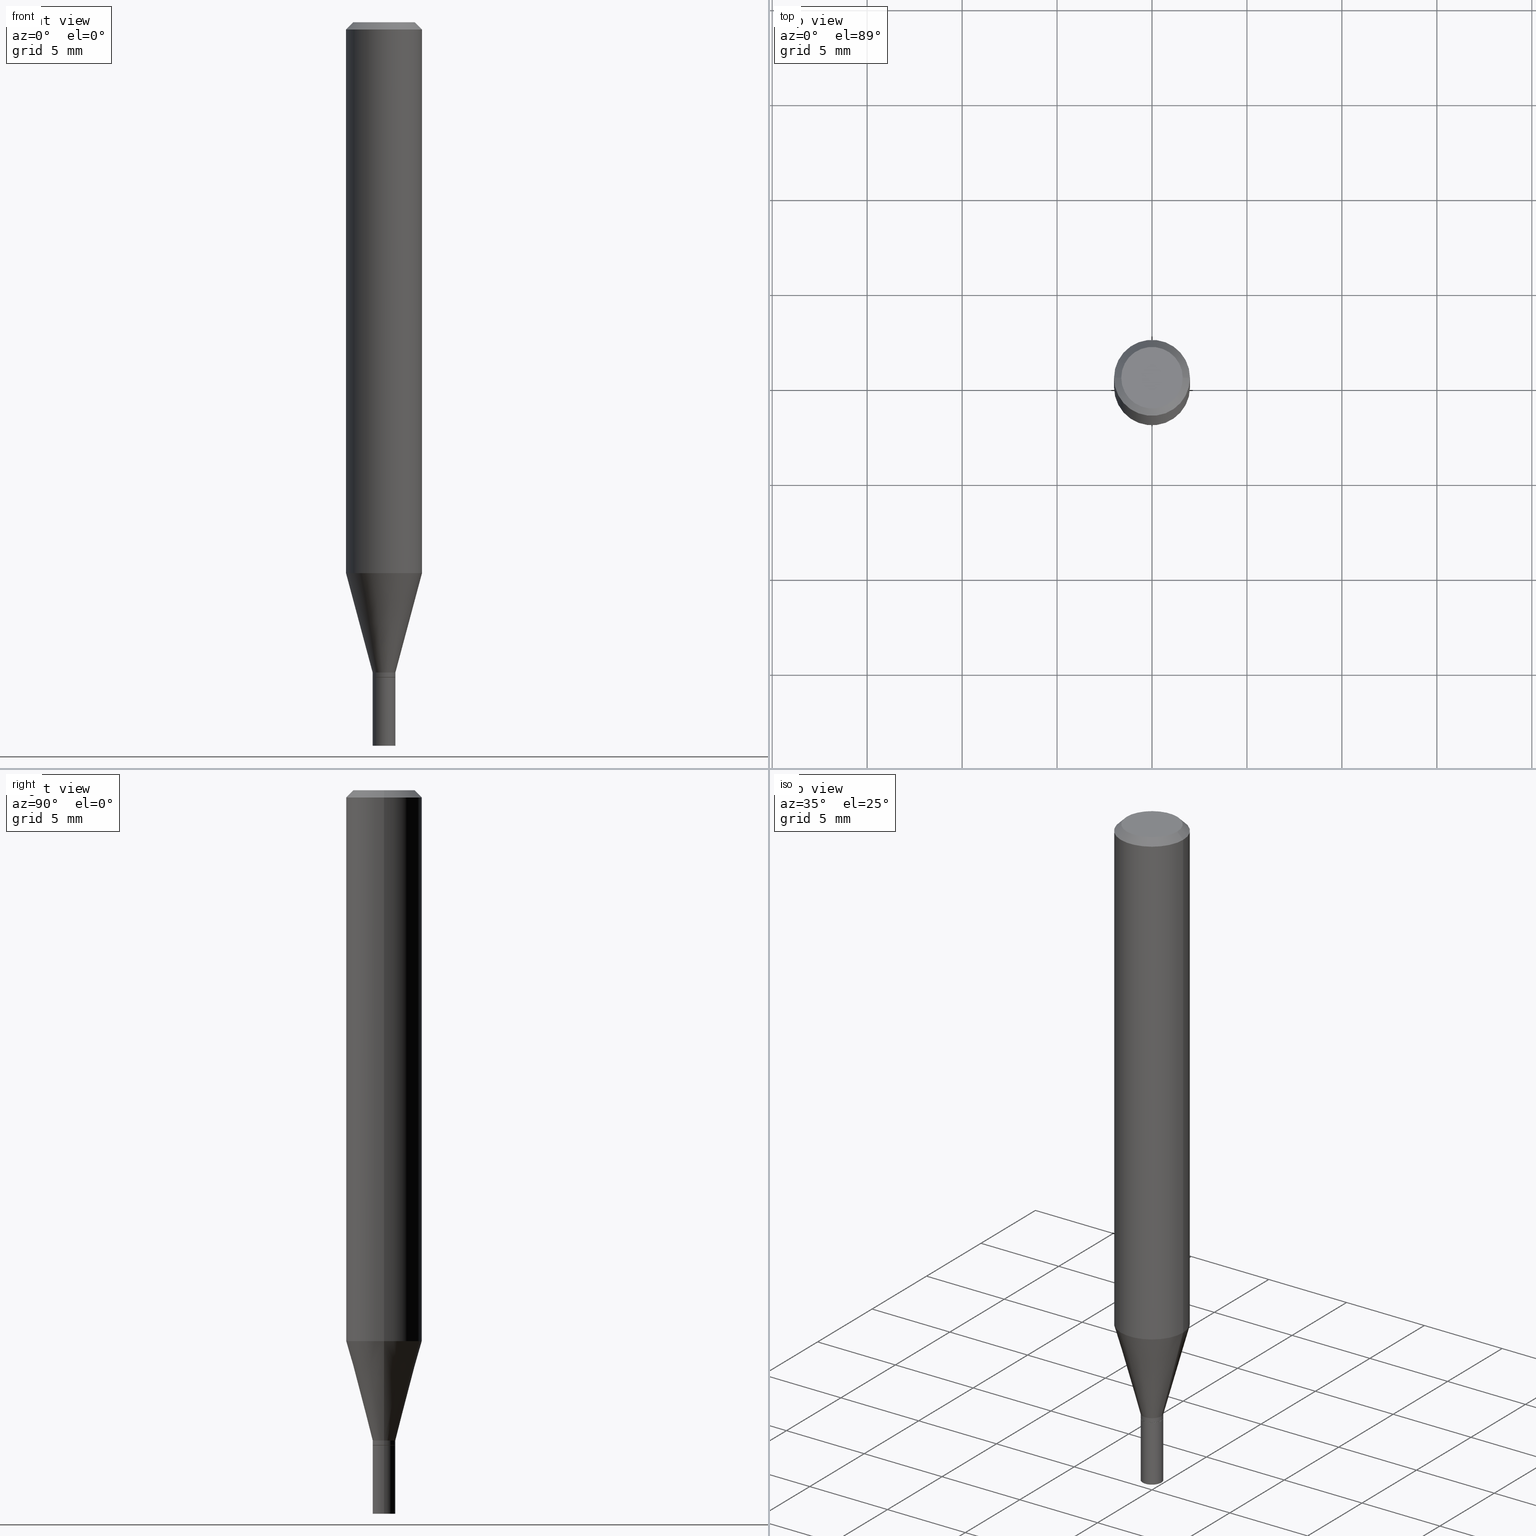
[diagram: canonical four-view strip — front | top / right | iso, engineering-drawing reading convention]
A machine part, canonical four-view strip (front | top / right | iso — engineering-drawing reading convention). The complete STEP part file that produces these views, byte-faithful:
ISO-10303-21;
HEADER;
FILE_DESCRIPTION (( 'STEP AP203' ),
    '1' );
FILE_NAME ('02905.STEP',
    '2024-03-18T22:10:04',
    ( '' ),
    ( '' ),
    'SwSTEP 2.0',
    'SolidWorks 2023',
    '' );
FILE_SCHEMA (( 'CONFIG_CONTROL_DESIGN' ));
ENDSEC;

DATA;
#1 = CARTESIAN_POINT ( 'NONE',  ( 0.02359999999999992312, -4.905531281074619088E-15, -1.357800000000000118 ) ) ;
#2 = EDGE_LOOP ( 'NONE', ( #65, #244, #383, #230 ) ) ;
#3 = CARTESIAN_POINT ( 'NONE',  ( -0.07875000000000000056, -3.428338666223679315E-15, -1.142177397962576890 ) ) ;
#4 = EDGE_CURVE ( 'NONE', #78, #345, #380, .T. ) ;
#5 = DIRECTION ( 'NONE',  ( 1.000000000000000000, -6.982962677686268288E-15, 0.000000000000000000 ) ) ;
#6 = VECTOR ( 'NONE', #116, 39.37007874015748143 ) ;
#7 = DIRECTION ( 'NONE',  ( -2.445468806185136597E-29, 3.491481338843145583E-15, 1.000000000000000000 ) ) ;
#8 = ORIENTED_EDGE ( 'NONE', *, *, #312, .F. ) ;
#9 = PRODUCT_RELATED_PRODUCT_CATEGORY ( 'detail', '', ( #193 ) ) ;
#10 = CARTESIAN_POINT ( 'NONE',  ( 3.296491950737564433E-29, -4.706516844760561370E-15, -1.348000000000000309 ) ) ;
#11 = ADVANCED_FACE ( 'NONE', ( #330 ), #293, .T. ) ;
#12 = ADVANCED_FACE ( 'NONE', ( #50 ), #296, .T. ) ;
#13 = VERTEX_POINT ( 'NONE', #121 ) ;
#14 = APPROVAL_DATE_TIME ( #86, #283 ) ;
#15 = AXIS2_PLACEMENT_3D ( 'NONE', #154, #318, #194 ) ;
#16 = AXIS2_PLACEMENT_3D ( 'NONE', #327, #79, #218 ) ;
#17 = FACE_OUTER_BOUND ( 'NONE', #137, .T. ) ;
#18 = DIRECTION ( 'NONE',  ( 1.000000000000000000, -6.982962677686278543E-15, 0.000000000000000000 ) ) ;
#19 = LINE ( 'NONE', #36, #408 ) ;
#20 = EDGE_CURVE ( 'NONE', #13, #52, #112, .T. ) ;
#21 = ORIENTED_EDGE ( 'NONE', *, *, #223, .F. ) ;
#22 = CC_DESIGN_PERSON_AND_ORGANIZATION_ASSIGNMENT ( #259, #153, ( #193 ) ) ;
#23 = FACE_OUTER_BOUND ( 'NONE', #317, .T. ) ;
#24 = PERSON_AND_ORGANIZATION ( #162, #306 ) ;
#25 = AXIS2_PLACEMENT_3D ( 'NONE', #115, #155, #5 ) ;
#26 = LOCAL_TIME ( 18, 10, 4.000000000000000000, #415 ) ;
#27 = DIRECTION ( 'NONE',  ( 1.000000000000000000, -6.982962677686278543E-15, 0.000000000000000000 ) ) ;
#28 = CALENDAR_DATE ( 2024, 18, 3 ) ;
#29 = EDGE_LOOP ( 'NONE', ( #385, #163, #430, #454 ) ) ;
#30 = MANIFOLD_SOLID_BREP ( 'Body-Move/Copy2[1]', #287 ) ;
#31 = DATE_TIME_ROLE ( 'classification_date' ) ;
#32 = CONICAL_SURFACE ( 'NONE', #15, 0.07875000000000000056, 0.7853981633974631560 ) ;
#33 = AXIS2_PLACEMENT_3D ( 'NONE', #127, #120, #84 ) ;
#34 = CALENDAR_DATE ( 2024, 18, 3 ) ;
#35 = CARTESIAN_POINT ( 'NONE',  ( 3.321680279441271211E-29, -4.742479102550645133E-15, -1.358300000000000063 ) ) ;
#36 = CARTESIAN_POINT ( 'NONE',  ( 0.02309999999999999901, -4.903785540405197584E-15, -1.358300000000000063 ) ) ;
#37 = FACE_OUTER_BOUND ( 'NONE', #144, .T. ) ;
#38 = ORIENTED_EDGE ( 'NONE', *, *, #431, .F. ) ;
#39 = CIRCLE ( 'NONE', #126, 0.02360000000000000292 ) ;
#40 = AXIS2_PLACEMENT_3D ( 'NONE', #182, #72, #212 ) ;
#41 = DIRECTION ( 'NONE',  ( -2.445468806185136597E-29, 3.491481338843145583E-15, 1.000000000000000000 ) ) ;
#42 = LINE ( 'NONE', #321, #403 ) ;
#43 = EDGE_CURVE ( 'NONE', #381, #78, #152, .T. ) ;
#44 = CARTESIAN_POINT ( 'NONE',  ( 3.296491950737564433E-29, -4.706516844760561370E-15, -1.348000000000000309 ) ) ;
#45 = CYLINDRICAL_SURFACE ( 'NONE', #139, 0.02360000000000000292 ) ;
#46 = DIRECTION ( 'NONE',  ( -1.000000000000000000, 6.982962677686265922E-15, -4.876176775795935793E-29 ) ) ;
#47 = CARTESIAN_POINT ( 'NONE',  ( 0.000000000000000000, 0.000000000000000000, 0.000000000000000000 ) ) ;
#48 = DIRECTION ( 'NONE',  ( -2.445468806185136597E-29, 3.491481338843145583E-15, 1.000000000000000000 ) ) ;
#49 = PERSON_AND_ORGANIZATION ( #162, #306 ) ;
#50 = FACE_OUTER_BOUND ( 'NONE', #184, .T. ) ;
#51 = LENGTH_MEASURE_WITH_UNIT ( LENGTH_MEASURE( 0.02539999999999999897 ), #224 );
#52 = VERTEX_POINT ( 'NONE', #190 ) ;
#53 = CARTESIAN_POINT ( 'NONE',  ( 3.321680279441271211E-29, -4.742479102550645133E-15, -1.358300000000000063 ) ) ;
#54 = EDGE_CURVE ( 'NONE', #359, #282, #249, .T. ) ;
#55 = APPROVAL_PERSON_ORGANIZATION ( #49, #283, #333 ) ;
#56 = LINE ( 'NONE', #125, #240 ) ;
#57 = PLANE ( 'NONE',  #272 ) ;
#58 = PERSON_AND_ORGANIZATION_ROLE ( 'design_supplier' ) ;
#59 =( NAMED_UNIT ( * ) PLANE_ANGLE_UNIT ( ) SI_UNIT ( $, .RADIAN. ) );
#60 = EDGE_CURVE ( 'NONE', #410, #175, #183, .T. ) ;
#61 = CARTESIAN_POINT ( 'NONE',  ( 3.576687321579069994E-29, -5.368277968210015545E-15, -1.500000000000000222 ) ) ;
#62 = CIRCLE ( 'NONE', #329, 0.07875000000000000056 ) ;
#63 = ORIENTED_EDGE ( 'NONE', *, *, #456, .T. ) ;
#64 = SHAPE_DEFINITION_REPRESENTATION ( #124, #267 ) ;
#65 = ORIENTED_EDGE ( 'NONE', *, *, #164, .F. ) ;
#66 = APPROVAL_ROLE ( '' ) ;
#67 = LINE ( 'NONE', #128, #464 ) ;
#68 = AXIS2_PLACEMENT_3D ( 'NONE', #251, #147, #406 ) ;
#69 = CC_DESIGN_PERSON_AND_ORGANIZATION_ASSIGNMENT ( #92, #231, ( #105 ) ) ;
#70 = CYLINDRICAL_SURFACE ( 'NONE', #349, 0.07875000000000000056 ) ;
#71 = FACE_OUTER_BOUND ( 'NONE', #2, .T. ) ;
#72 = DIRECTION ( 'NONE',  ( -2.445468806185136597E-29, 3.491481338843145583E-15, 1.000000000000000000 ) ) ;
#73 = AXIS2_PLACEMENT_3D ( 'NONE', #263, #90, #27 ) ;
#74 = ADVANCED_FACE ( 'NONE', ( #217 ), #117, .F. ) ;
#75 = DIRECTION ( 'NONE',  ( -2.445468806185136597E-29, 3.491481338843145583E-15, 1.000000000000000000 ) ) ;
#76 = CARTESIAN_POINT ( 'NONE',  ( 1.647979191934291088E-16, 0.02359999999999526019, -1.358300000000000063 ) ) ;
#77 = DIRECTION ( 'NONE',  ( 1.000000000000000000, -6.982962677686258033E-15, 0.000000000000000000 ) ) ;
#78 = VERTEX_POINT ( 'NONE', #401 ) ;
#79 = DIRECTION ( 'NONE',  ( -2.445468806185136597E-29, 3.491481338843145583E-15, 1.000000000000000000 ) ) ;
#80 = ADVANCED_FACE ( 'NONE', ( #17 ), #156, .T. ) ;
#81 = DIRECTION ( 'NONE',  ( -2.445468806185136597E-29, 3.491481338843145583E-15, 1.000000000000000000 ) ) ;
#82 = AXIS2_PLACEMENT_3D ( 'NONE', #47, #41, #424 ) ;
#83 = CC_DESIGN_APPROVAL ( #283, ( #189 ) ) ;
#84 = DIRECTION ( 'NONE',  ( 1.000000000000000000, 0.000000000000000000, 0.000000000000000000 ) ) ;
#85 = EDGE_LOOP ( 'NONE', ( #340, #463, #254, #21 ) ) ;
#86 = DATE_AND_TIME ( #405, #236 ) ;
#87 = CARTESIAN_POINT ( 'NONE',  ( 3.321680279441271211E-29, -4.742479102550645133E-15, -1.358300000000000063 ) ) ;
#88 = DIRECTION ( 'NONE',  ( 1.000000000000000000, -6.982962677686278543E-15, 0.000000000000000000 ) ) ;
#89 = AXIS2_PLACEMENT_3D ( 'NONE', #76, #361, #46 ) ;
#90 = DIRECTION ( 'NONE',  ( -2.445468806185136597E-29, 3.491481338843145583E-15, 1.000000000000000000 ) ) ;
#91 = EDGE_LOOP ( 'NONE', ( #428, #118 ) ) ;
#92 = PERSON_AND_ORGANIZATION ( #162, #306 ) ;
#93 = MECHANICAL_CONTEXT ( 'NONE', #245, 'mechanical' ) ;
#94 = DIRECTION ( 'NONE',  ( -2.445468806185136597E-29, 3.491481338843145583E-15, 1.000000000000000000 ) ) ;
#95 = COORDINATED_UNIVERSAL_TIME_OFFSET ( 5, 0, .BEHIND. ) ;
#96 = DIRECTION ( 'NONE',  ( -2.445468806185136877E-29, 3.491481338843145188E-15, 1.000000000000000000 ) ) ;
#97 = EDGE_CURVE ( 'NONE', #351, #225, #449, .T. ) ;
#98 = VECTOR ( 'NONE', #307, 39.37007874015748143 ) ;
#99 = AXIS2_PLACEMENT_3D ( 'NONE', #400, #255, #279 ) ;
#100 = ORIENTED_EDGE ( 'NONE', *, *, #97, .T. ) ;
#101 = APPROVAL_STATUS ( 'not_yet_approved' ) ;
#102 = ADVANCED_FACE ( 'NONE', ( #332 ), #32, .T. ) ;
#103 = DIRECTION ( 'NONE',  ( 1.000000000000000000, -6.982962677686265922E-15, 4.876176775795935793E-29 ) ) ;
#104 = CIRCLE ( 'NONE', #356, 0.02359999999999992312 ) ;
#105 = PRODUCT_DEFINITION_FORMATION_WITH_SPECIFIED_SOURCE ( 'ANY', '', #193, .NOT_KNOWN. ) ;
#106 = DIRECTION ( 'NONE',  ( 1.000000000000000000, -6.982962677686265922E-15, 4.876176775795935232E-29 ) ) ;
#107 = ORIENTED_EDGE ( 'NONE', *, *, #425, .F. ) ;
#108 = CARTESIAN_POINT ( 'NONE',  ( 3.668203209277705088E-31, -5.237222008264718399E-17, -0.01499999999999999944 ) ) ;
#109 = ORIENTED_EDGE ( 'NONE', *, *, #444, .F. ) ;
#110 = CARTESIAN_POINT ( 'NONE',  ( 0.000000000000000000, 0.000000000000000000, 0.000000000000000000 ) ) ;
#111 = CIRCLE ( 'NONE', #119, 0.07875000000000000056 ) ;
#112 = CIRCLE ( 'NONE', #68, 0.02360000000000000292 ) ;
#113 = CC_DESIGN_SECURITY_CLASSIFICATION ( #168, ( #105 ) ) ;
#114 = CARTESIAN_POINT ( 'NONE',  ( 0.02309999999999999901, -4.903785540405197584E-15, -1.358300000000000063 ) ) ;
#115 = CARTESIAN_POINT ( 'NONE',  ( 2.793159197847188577E-29, -3.987891070634758511E-15, -1.142177397962576890 ) ) ;
#116 = DIRECTION ( 'NONE',  ( -2.445468806185136877E-29, 3.491481338843145188E-15, 1.000000000000000000 ) ) ;
#117 = PLANE ( 'NONE',  #89 ) ;
#118 = ORIENTED_EDGE ( 'NONE', *, *, #413, .T. ) ;
#119 = AXIS2_PLACEMENT_3D ( 'NONE', #447, #453, #130 ) ;
#120 = DIRECTION ( 'NONE',  ( 0.000000000000000000, 0.000000000000000000, 1.000000000000000000 ) ) ;
#121 = CARTESIAN_POINT ( 'NONE',  ( 0.02360000000000000292, -4.907277021744040592E-15, -1.358300000000000063 ) ) ;
#122 = DIRECTION ( 'NONE',  ( -2.445468806185136877E-29, 3.491481338843145188E-15, 1.000000000000000000 ) ) ;
#123 = ADVANCED_FACE ( 'NONE', ( #414 ), #328, .T. ) ;
#124 = PRODUCT_DEFINITION_SHAPE ( 'NONE', 'NONE',  #189 ) ;
#125 = CARTESIAN_POINT ( 'NONE',  ( -0.02360000000000000292, 1.676880856393836646E-16, -1.160868681300157803E-30 ) ) ;
#126 = AXIS2_PLACEMENT_3D ( 'NONE', #268, #165, #226 ) ;
#127 = CARTESIAN_POINT ( 'NONE',  ( 0.000000000000000000, 0.000000000000000000, 0.000000000000000000 ) ) ;
#128 = CARTESIAN_POINT ( 'NONE',  ( 0.07875000000000000056, -5.926364374071552647E-16, -0.01499999999999999944 ) ) ;
#129 = ORIENTED_EDGE ( 'NONE', *, *, #43, .T. ) ;
#130 = DIRECTION ( 'NONE',  ( 1.000000000000000000, -6.982962677686268288E-15, 0.000000000000000000 ) ) ;
#131 = SECURITY_CLASSIFICATION_LEVEL ( 'unclassified' ) ;
#132 = PERSON_AND_ORGANIZATION ( #162, #306 ) ;
#133 = AXIS2_PLACEMENT_3D ( 'NONE', #10, #369, #256 ) ;
#134 = ORIENTED_EDGE ( 'NONE', *, *, #346, .T. ) ;
#135 = PERSON_AND_ORGANIZATION ( #162, #306 ) ;
#136 = FACE_OUTER_BOUND ( 'NONE', #260, .T. ) ;
#137 = EDGE_LOOP ( 'NONE', ( #178, #157, #204, #324 ) ) ;
#138 = CARTESIAN_POINT ( 'NONE',  ( 0.000000000000000000, 0.000000000000000000, 0.000000000000000000 ) ) ;
#139 = AXIS2_PLACEMENT_3D ( 'NONE', #110, #214, #288 ) ;
#140 = ORIENTED_EDGE ( 'NONE', *, *, #60, .F. ) ;
#141 = DIRECTION ( 'NONE',  ( -2.445468806185136597E-29, 3.491481338843145583E-15, 1.000000000000000000 ) ) ;
#142 = EDGE_CURVE ( 'NONE', #286, #359, #67, .T. ) ;
#143 = EDGE_CURVE ( 'NONE', #78, #359, #407, .T. ) ;
#144 = EDGE_LOOP ( 'NONE', ( #100, #274, #38, #404 ) ) ;
#145 = DIRECTION ( 'NONE',  ( 1.000000000000000000, -6.982962677686279332E-15, 0.000000000000000000 ) ) ;
#146 = CARTESIAN_POINT ( 'NONE',  ( -0.07875000000000000056, -1.460579240947623994E-15, -0.01499999999999999944 ) ) ;
#147 = DIRECTION ( 'NONE',  ( -2.445468806185136597E-29, 3.491481338843145583E-15, 1.000000000000000000 ) ) ;
#148 = APPROVAL_PERSON_ORGANIZATION ( #421, #150, #348 ) ;
#149 = EDGE_CURVE ( 'NONE', #378, #394, #39, .T. ) ;
#150 = APPROVAL ( #101, 'UNSPECIFIED' ) ;
#151 = CARTESIAN_POINT ( 'NONE',  ( -0.07875000000000000056, 5.595524044110789003E-16, -3.873661383575737792E-30 ) ) ;
#152 = LINE ( 'NONE', #446, #167 ) ;
#153 = PERSON_AND_ORGANIZATION_ROLE ( 'design_owner' ) ;
#154 = CARTESIAN_POINT ( 'NONE',  ( 3.668203209277705088E-31, -5.237222008264718399E-17, -0.01499999999999999944 ) ) ;
#155 = DIRECTION ( 'NONE',  ( -2.445468806185136597E-29, 3.491481338843145583E-15, 1.000000000000000000 ) ) ;
#156 = CONICAL_SURFACE ( 'NONE', #441, 0.02359999999999993006, 0.2617993877991500740 ) ;
#157 = ORIENTED_EDGE ( 'NONE', *, *, #344, .T. ) ;
#158 = DIRECTION ( 'NONE',  ( -2.445468806185136597E-29, 3.491481338843145583E-15, 1.000000000000000000 ) ) ;
#159 = DIRECTION ( 'NONE',  ( 0.7071067811865656694, -2.468850131082446387E-15, 0.7071067811865294761 ) ) ;
#160 = ORIENTED_EDGE ( 'NONE', *, *, #438, .F. ) ;
#161 = DIRECTION ( 'NONE',  ( 2.445468806185136597E-29, -3.491481338843145583E-15, -1.000000000000000000 ) ) ;
#162 = PERSON ( 'UNSPECIFIED', 'UNSPECIFIED', 'UNSPECIFIED', ('UNSPECIFIED'), ('UNSPECIFIED'), ('UNSPECIFIED') ) ;
#163 = ORIENTED_EDGE ( 'NONE', *, *, #164, .T. ) ;
#164 = EDGE_CURVE ( 'NONE', #394, #52, #56, .T. ) ;
#165 = DIRECTION ( 'NONE',  ( -2.445468806185136597E-29, 3.491481338843145583E-15, 1.000000000000000000 ) ) ;
#166 = ORIENTED_EDGE ( 'NONE', *, *, #223, .T. ) ;
#167 = VECTOR ( 'NONE', #437, 39.37007874015747433 ) ;
#168 = SECURITY_CLASSIFICATION ( '', '', #131 ) ;
#169 = APPROVAL_PERSON_ORGANIZATION ( #24, #281, #66 ) ;
#170 = CARTESIAN_POINT ( 'NONE',  ( 0.07875000000000000056, -5.499083108677934443E-16, 3.839989210939299016E-30 ) ) ;
#171 = CARTESIAN_POINT ( 'NONE',  ( 0.000000000000000000, 0.000000000000000000, 0.000000000000000000 ) ) ;
#172 = EDGE_LOOP ( 'NONE', ( #8, #347, #209, #160 ) ) ;
#173 = ADVANCED_FACE ( 'NONE', ( #386 ), #264, .T. ) ;
#174 = LINE ( 'NONE', #151, #289 ) ;
#175 = VERTEX_POINT ( 'NONE', #206 ) ;
#176 = MANIFOLD_SOLID_BREP ( 'Body-Move/Copy2[2]', #432 ) ;
#177 = DIRECTION ( 'NONE',  ( -2.445468806185136597E-29, 3.491481338843145583E-15, 1.000000000000000000 ) ) ;
#178 = ORIENTED_EDGE ( 'NONE', *, *, #431, .T. ) ;
#179 = DIRECTION ( 'NONE',  ( 1.000000000000000000, -6.982962677686265922E-15, 4.852736867747365646E-29 ) ) ;
#180 = ADVANCED_FACE ( 'NONE', ( #338 ), #278, .T. ) ;
#181 = CARTESIAN_POINT ( 'NONE',  ( 3.320457545038178970E-29, -4.740733361881223629E-15, -1.357800000000000118 ) ) ;
#182 = CARTESIAN_POINT ( 'NONE',  ( 3.321680279441271211E-29, -4.742479102550645133E-15, -1.358300000000000063 ) ) ;
#183 = CIRCLE ( 'NONE', #402, 0.02309999999999999901 ) ;
#184 = EDGE_LOOP ( 'NONE', ( #363, #452, #129, #420 ) ) ;
#185 = CARTESIAN_POINT ( 'NONE',  ( 0.02359999999999993006, -4.871314763953956829E-15, -1.348000000000000309 ) ) ;
#186 = DIRECTION ( 'NONE',  ( 1.000000000000000000, -6.982962677686281699E-15, 0.000000000000000000 ) ) ;
#187 = APPROVAL_STATUS ( 'not_yet_approved' ) ;
#188 = VERTEX_POINT ( 'NONE', #232 ) ;
#189 = PRODUCT_DEFINITION ( 'UNKNOWN', '', #105, #191 ) ;
#190 = CARTESIAN_POINT ( 'NONE',  ( -0.02360000000000000292, -4.822162469768297941E-15, -1.358300000000000063 ) ) ;
#191 = DESIGN_CONTEXT ( 'detailed design', #314, 'design' ) ;
#192 = VECTOR ( 'NONE', #122, 39.37007874015748143 ) ;
#193 = PRODUCT ( '02905', '02905', '', ( #93 ) ) ;
#194 = DIRECTION ( 'NONE',  ( -1.000000000000000000, 6.982962677686265922E-15, 0.000000000000000000 ) ) ;
#195 = ORIENTED_EDGE ( 'NONE', *, *, #142, .T. ) ;
#196 = DIRECTION ( 'NONE',  ( -2.445468806185136597E-29, 3.491481338843145583E-15, 1.000000000000000000 ) ) ;
#197 = ADVANCED_FACE ( 'NONE', ( #261 ), #377, .T. ) ;
#198 = ORIENTED_EDGE ( 'NONE', *, *, #271, .T. ) ;
#199 = PERSON_AND_ORGANIZATION_ROLE ( 'classification_officer' ) ;
#200 = DIMENSIONAL_EXPONENTS ( 1.000000000000000000, 0.000000000000000000, 0.000000000000000000, 0.000000000000000000, 0.000000000000000000, 0.000000000000000000, 0.000000000000000000 ) ;
#201 = DIRECTION ( 'NONE',  ( -2.438088387897960049E-29, 3.491481338843145188E-15, 1.000000000000000000 ) ) ;
#202 = DATE_AND_TIME ( #34, #26 ) ;
#203 = CIRCLE ( 'NONE', #336, 0.02360000000000000292 ) ;
#204 = ORIENTED_EDGE ( 'NONE', *, *, #4, .F. ) ;
#205 = ADVANCED_FACE ( 'NONE', ( #375 ), #57, .F. ) ;
#206 = CARTESIAN_POINT ( 'NONE',  ( -0.02309999999999999901, -4.575694503415950722E-15, -1.358300000000000063 ) ) ;
#207 = CIRCLE ( 'NONE', #40, 0.02360000000000000292 ) ;
#208 = DIRECTION ( 'NONE',  ( 2.438088387897960049E-29, -3.491481338843145188E-15, -1.000000000000000000 ) ) ;
#209 = ORIENTED_EDGE ( 'NONE', *, *, #143, .T. ) ;
#210 = DIRECTION ( 'NONE',  ( -0.7071067811865656694, 7.493145998870420424E-15, 0.7071067811865294761 ) ) ;
#211 = ORIENTED_EDGE ( 'NONE', *, *, #444, .T. ) ;
#212 = DIRECTION ( 'NONE',  ( 1.000000000000000000, -6.982962677686258033E-15, 0.000000000000000000 ) ) ;
#213 = EDGE_LOOP ( 'NONE', ( #299, #304, #198, #233 ) ) ;
#214 = DIRECTION ( 'NONE',  ( -2.445468806185136597E-29, 3.491481338843145583E-15, 1.000000000000000000 ) ) ;
#215 = CARTESIAN_POINT ( 'NONE',  ( 0.000000000000000000, 0.000000000000000000, 0.000000000000000000 ) ) ;
#216 = CARTESIAN_POINT ( 'NONE',  ( -0.02359999999999993006, -4.538828759121177262E-15, -1.348000000000000309 ) ) ;
#217 = FACE_OUTER_BOUND ( 'NONE', #91, .T. ) ;
#218 = DIRECTION ( 'NONE',  ( 1.000000000000000000, -6.982962677686279332E-15, 0.000000000000000000 ) ) ;
#219 = AXIS2_PLACEMENT_3D ( 'NONE', #350, #94, #88 ) ;
#220 = DIRECTION ( 'NONE',  ( 1.000000000000000000, -6.982962677686279332E-15, 0.000000000000000000 ) ) ;
#221 = CC_DESIGN_APPROVAL ( #150, ( #105 ) ) ;
#222 = EDGE_LOOP ( 'NONE', ( #443, #63, #166, #417 ) ) ;
#223 = EDGE_CURVE ( 'NONE', #410, #351, #19, .T. ) ;
#224 =( LENGTH_UNIT ( ) NAMED_UNIT ( * ) SI_UNIT ( $, .METRE. ) );
#225 = VERTEX_POINT ( 'NONE', #374 ) ;
#226 = DIRECTION ( 'NONE',  ( 1.000000000000000000, -6.982962677686258033E-15, 0.000000000000000000 ) ) ;
#227 = CIRCLE ( 'NONE', #343, 0.06375000000000000111 ) ;
#228 = CC_DESIGN_DATE_AND_TIME_ASSIGNMENT ( #341, #308, ( #189 ) ) ;
#229 = DIRECTION ( 'NONE',  ( -1.000000000000000000, 6.982962677686265922E-15, -4.876176775795935793E-29 ) ) ;
#230 = ORIENTED_EDGE ( 'NONE', *, *, #413, .F. ) ;
#231 = PERSON_AND_ORGANIZATION_ROLE ( 'creator' ) ;
#232 = CARTESIAN_POINT ( 'NONE',  ( -0.06375000000000000111, 4.713499807438221352E-16, -4.447989849365133964E-16 ) ) ;
#233 = ORIENTED_EDGE ( 'NONE', *, *, #355, .F. ) ;
#234 = DATE_AND_TIME ( #266, #273 ) ;
#235 = AXIS2_PLACEMENT_3D ( 'NONE', #181, #48, #186 ) ;
#236 = LOCAL_TIME ( 18, 10, 4.000000000000000000, #440 ) ;
#237 = ADVANCED_FACE ( 'NONE', ( #23 ), #342, .F. ) ;
#238 = DATE_AND_TIME ( #28, #311 ) ;
#239 = CARTESIAN_POINT ( 'NONE',  ( 3.668203209277705088E-31, -5.237222008264718399E-17, -0.01499999999999999944 ) ) ;
#240 = VECTOR ( 'NONE', #96, 39.37007874015748143 ) ;
#241 = DIRECTION ( 'NONE',  ( -2.445468806185136877E-29, 3.491481338843145188E-15, 1.000000000000000000 ) ) ;
#242 = CIRCLE ( 'NONE', #99, 0.06375000000000000111 ) ;
#243 = LINE ( 'NONE', #216, #365 ) ;
#244 = ORIENTED_EDGE ( 'NONE', *, *, #353, .T. ) ;
#245 = APPLICATION_CONTEXT ( 'configuration controlled 3d designs of mechanical parts and assemblies' ) ;
#246 = DIRECTION ( 'NONE',  ( -2.445468806185136877E-29, 3.491481338843145188E-15, 1.000000000000000000 ) ) ;
#247 = CC_DESIGN_PERSON_AND_ORGANIZATION_ASSIGNMENT ( #132, #199, ( #168 ) ) ;
#248 = DIRECTION ( 'NONE',  ( -0.2588190451025213501, 5.211531920934551042E-15, 0.9659258262890682012 ) ) ;
#249 = CIRCLE ( 'NONE', #433, 0.07875000000000000056 ) ;
#250 = AXIS2_PLACEMENT_3D ( 'NONE', #138, #354, #427 ) ;
#251 = CARTESIAN_POINT ( 'NONE',  ( 3.321680279441271211E-29, -4.742479102550645133E-15, -1.358300000000000063 ) ) ;
#252 = EDGE_CURVE ( 'NONE', #378, #13, #301, .T. ) ;
#253 = DIRECTION ( 'NONE',  ( 1.000000000000000000, -6.982962677686281699E-15, 0.000000000000000000 ) ) ;
#254 = ORIENTED_EDGE ( 'NONE', *, *, #97, .F. ) ;
#255 = DIRECTION ( 'NONE',  ( -2.445468806185136597E-29, 3.491481338843145583E-15, 1.000000000000000000 ) ) ;
#256 = DIRECTION ( 'NONE',  ( 1.000000000000000000, -6.982962677686279332E-15, 0.000000000000000000 ) ) ;
#257 = ADVANCED_FACE ( 'NONE', ( #136 ), #451, .F. ) ;
#258 = ORIENTED_EDGE ( 'NONE', *, *, #149, .F. ) ;
#259 = PERSON_AND_ORGANIZATION ( #162, #306 ) ;
#260 = EDGE_LOOP ( 'NONE', ( #258, #319 ) ) ;
#261 = FACE_OUTER_BOUND ( 'NONE', #29, .T. ) ;
#262 = EDGE_CURVE ( 'NONE', #345, #78, #111, .T. ) ;
#263 = CARTESIAN_POINT ( 'NONE',  ( 3.321680279441271211E-29, -4.742479102550645133E-15, -1.358300000000000063 ) ) ;
#264 = CONICAL_SURFACE ( 'NONE', #73, 0.02309999999999999901, 0.7853981633974739252 ) ;
#265 = EDGE_LOOP ( 'NONE', ( #134, #461 ) ) ;
#266 = CALENDAR_DATE ( 2024, 18, 3 ) ;
#267 = ADVANCED_BREP_SHAPE_REPRESENTATION ( '02905', ( #30, #176, #33 ), #465 ) ;
#268 = CARTESIAN_POINT ( 'NONE',  ( 3.668203209277704895E-29, -5.237222008264718177E-15, -1.500000000000000222 ) ) ;
#269 = EDGE_LOOP ( 'NONE', ( #309, #387, #211, #439 ) ) ;
#270 = LINE ( 'NONE', #422, #303 ) ;
#271 = EDGE_CURVE ( 'NONE', #351, #381, #270, .T. ) ;
#272 = AXIS2_PLACEMENT_3D ( 'NONE', #277, #208, #229 ) ;
#273 = LOCAL_TIME ( 18, 10, 4.000000000000000000, #95 ) ;
#274 = ORIENTED_EDGE ( 'NONE', *, *, #384, .T. ) ;
#275 = APPROVAL_STATUS ( 'not_yet_approved' ) ;
#276 = ADVANCED_FACE ( 'NONE', ( #389 ), #70, .T. ) ;
#277 = CARTESIAN_POINT ( 'NONE',  ( 4.451638707024993845E-16, 0.06375000000000000111, -4.449814278195055523E-16 ) ) ;
#278 = CONICAL_SURFACE ( 'NONE', #219, 0.02309999999999999901, 0.7853981633974739252 ) ;
#279 = DIRECTION ( 'NONE',  ( 1.000000000000000000, -6.982962677686265922E-15, 4.852736867747365646E-29 ) ) ;
#280 = FACE_OUTER_BOUND ( 'NONE', #213, .T. ) ;
#281 = APPROVAL ( #275, 'UNSPECIFIED' ) ;
#282 = VERTEX_POINT ( 'NONE', #146 ) ;
#283 = APPROVAL ( #187, 'UNSPECIFIED' ) ;
#284 = CARTESIAN_POINT ( 'NONE',  ( 3.296491950737564433E-29, -4.706516844760561370E-15, -1.348000000000000309 ) ) ;
#285 = EDGE_CURVE ( 'NONE', #225, #351, #104, .T. ) ;
#286 = VERTEX_POINT ( 'NONE', #398 ) ;
#287 = CLOSED_SHELL ( 'NONE', ( #197, #257, #372, #74 ) ) ;
#288 = DIRECTION ( 'NONE',  ( 1.000000000000000000, -6.982962677686267499E-15, 4.876176775795935793E-29 ) ) ;
#289 = VECTOR ( 'NONE', #246, 39.37007874015748143 ) ;
#290 = CC_DESIGN_APPROVAL ( #281, ( #168 ) ) ;
#291 = DIRECTION ( 'NONE',  ( -2.445468806185136597E-29, 3.491481338843145583E-15, 1.000000000000000000 ) ) ;
#292 = CARTESIAN_POINT ( 'NONE',  ( 1.087742042685048154E-44, -1.553007355442198790E-30, -4.447989849365101424E-16 ) ) ;
#293 = CYLINDRICAL_SURFACE ( 'NONE', #388, 0.07875000000000000056 ) ;
#294 = ORIENTED_EDGE ( 'NONE', *, *, #456, .F. ) ;
#295 =( NAMED_UNIT ( * ) SI_UNIT ( $, .STERADIAN. ) SOLID_ANGLE_UNIT ( ) );
#296 = CONICAL_SURFACE ( 'NONE', #133, 0.02359999999999993006, 0.2617993877991500740 ) ;
#297 = DIRECTION ( 'NONE',  ( -2.445468806185136597E-29, 3.491481338843145583E-15, 1.000000000000000000 ) ) ;
#298 = CARTESIAN_POINT ( 'NONE',  ( -0.07875000000000000056, 4.975360907851462665E-16, -0.01499999999999999944 ) ) ;
#299 = ORIENTED_EDGE ( 'NONE', *, *, #384, .F. ) ;
#300 =( CONVERSION_BASED_UNIT ( 'INCH', #51 ) LENGTH_UNIT ( ) NAMED_UNIT ( #200 ) );
#301 = LINE ( 'NONE', #460, #98 ) ;
#302 = DIRECTION ( 'NONE',  ( -2.438088387897960049E-29, 3.491481338843145188E-15, 1.000000000000000000 ) ) ;
#303 = VECTOR ( 'NONE', #241, 39.37007874015748143 ) ;
#304 = ORIENTED_EDGE ( 'NONE', *, *, #285, .T. ) ;
#305 = COORDINATED_UNIVERSAL_TIME_OFFSET ( 5, 0, .BEHIND. ) ;
#306 = ORGANIZATION ( 'UNSPECIFIED', 'UNSPECIFIED', '' ) ;
#307 = DIRECTION ( 'NONE',  ( -2.445468806185136877E-29, 3.491481338843145188E-15, 1.000000000000000000 ) ) ;
#308 = DATE_TIME_ROLE ( 'creation_date' ) ;
#309 = ORIENTED_EDGE ( 'NONE', *, *, #142, .F. ) ;
#310 = CIRCLE ( 'NONE', #373, 0.02359999999999993006 ) ;
#311 = LOCAL_TIME ( 18, 10, 4.000000000000000000, #305 ) ;
#312 = EDGE_CURVE ( 'NONE', #345, #282, #174, .T. ) ;
#313 = ORIENTED_EDGE ( 'NONE', *, *, #54, .F. ) ;
#314 = APPLICATION_CONTEXT ( 'configuration controlled 3d designs of mechanical parts and assemblies' ) ;
#315 = CC_DESIGN_PERSON_AND_ORGANIZATION_ASSIGNMENT ( #445, #379, ( #189 ) ) ;
#316 = DIRECTION ( 'NONE',  ( 1.000000000000000000, -6.982962677686265922E-15, 4.876176775795935793E-29 ) ) ;
#317 = EDGE_LOOP ( 'NONE', ( #140, #294 ) ) ;
#318 = DIRECTION ( 'NONE',  ( 2.445468806185136597E-29, -3.491481338843145583E-15, -1.000000000000000000 ) ) ;
#319 = ORIENTED_EDGE ( 'NONE', *, *, #353, .F. ) ;
#320 = AXIS2_PLACEMENT_3D ( 'NONE', #35, #302, #316 ) ;
#321 = CARTESIAN_POINT ( 'NONE',  ( -0.02309999999999999901, -4.578343730590061923E-15, -1.358300000000000063 ) ) ;
#322 = AXIS2_PLACEMENT_3D ( 'NONE', #53, #158, #18 ) ;
#323 = CARTESIAN_POINT ( 'NONE',  ( 3.320457545038178970E-29, -4.740733361881223629E-15, -1.357800000000000118 ) ) ;
#324 = ORIENTED_EDGE ( 'NONE', *, *, #43, .F. ) ;
#325 = CYLINDRICAL_SURFACE ( 'NONE', #82, 0.02359999999999993006 ) ;
#326 = ORIENTED_EDGE ( 'NONE', *, *, #54, .T. ) ;
#327 = CARTESIAN_POINT ( 'NONE',  ( 3.296491950737564433E-29, -4.706516844760561370E-15, -1.348000000000000309 ) ) ;
#328 = CONICAL_SURFACE ( 'NONE', #457, 0.07875000000000000056, 0.7853981633974631560 ) ;
#329 = AXIS2_PLACEMENT_3D ( 'NONE', #108, #364, #466 ) ;
#330 = FACE_OUTER_BOUND ( 'NONE', #172, .T. ) ;
#331 = ADVANCED_FACE ( 'NONE', ( #37 ), #325, .T. ) ;
#332 = FACE_OUTER_BOUND ( 'NONE', #269, .T. ) ;
#333 = APPROVAL_ROLE ( '' ) ;
#334 = EDGE_LOOP ( 'NONE', ( #458, #448, #313, #426 ) ) ;
#335 = DIRECTION ( 'NONE',  ( -0.7071067811865580088, 2.468850131082366712E-15, -0.7071067811865370256 ) ) ;
#336 = AXIS2_PLACEMENT_3D ( 'NONE', #362, #177, #77 ) ;
#337 = DIRECTION ( 'NONE',  ( 1.000000000000000000, -6.982962677686278543E-15, 0.000000000000000000 ) ) ;
#338 = FACE_OUTER_BOUND ( 'NONE', #222, .T. ) ;
#339 = CARTESIAN_POINT ( 'NONE',  ( 0.000000000000000000, 0.000000000000000000, 0.000000000000000000 ) ) ;
#340 = ORIENTED_EDGE ( 'NONE', *, *, #60, .T. ) ;
#341 = DATE_AND_TIME ( #418, #358 ) ;
#342 = PLANE ( 'NONE',  #320 ) ;
#343 = AXIS2_PLACEMENT_3D ( 'NONE', #292, #390, #179 ) ;
#344 = EDGE_CURVE ( 'NONE', #392, #345, #243, .T. ) ;
#345 = VERTEX_POINT ( 'NONE', #3 ) ;
#346 = EDGE_CURVE ( 'NONE', #188, #286, #227, .T. ) ;
#347 = ORIENTED_EDGE ( 'NONE', *, *, #262, .T. ) ;
#348 = APPROVAL_ROLE ( '' ) ;
#349 = AXIS2_PLACEMENT_3D ( 'NONE', #171, #7, #106 ) ;
#350 = CARTESIAN_POINT ( 'NONE',  ( 3.321680279441271211E-29, -4.742479102550645133E-15, -1.358300000000000063 ) ) ;
#351 = VERTEX_POINT ( 'NONE', #1 ) ;
#352 = DIRECTION ( 'NONE',  ( 1.000000000000000000, -6.982962677686267499E-15, 4.876176775795935793E-29 ) ) ;
#353 = EDGE_CURVE ( 'NONE', #394, #378, #203, .T. ) ;
#354 = DIRECTION ( 'NONE',  ( -2.445468806185136597E-29, 3.491481338843145583E-15, 1.000000000000000000 ) ) ;
#355 = EDGE_CURVE ( 'NONE', #392, #381, #310, .T. ) ;
#356 = AXIS2_PLACEMENT_3D ( 'NONE', #323, #75, #253 ) ;
#357 = LINE ( 'NONE', #298, #396 ) ;
#358 = LOCAL_TIME ( 18, 10, 4.000000000000000000, #376 ) ;
#359 = VERTEX_POINT ( 'NONE', #429 ) ;
#360 = CARTESIAN_POINT ( 'NONE',  ( -0.02359999999999993006, 1.676880856393831469E-16, -1.160868681300154125E-30 ) ) ;
#361 = DIRECTION ( 'NONE',  ( 2.438088387897960049E-29, -3.491481338843145188E-15, -1.000000000000000000 ) ) ;
#362 = CARTESIAN_POINT ( 'NONE',  ( 3.668203209277704895E-29, -5.237222008264718177E-15, -1.500000000000000222 ) ) ;
#363 = ORIENTED_EDGE ( 'NONE', *, *, #344, .F. ) ;
#364 = DIRECTION ( 'NONE',  ( -2.445468806185136597E-29, 3.491481338843145583E-15, 1.000000000000000000 ) ) ;
#365 = VECTOR ( 'NONE', #248, 39.37007874015747433 ) ;
#366 = CIRCLE ( 'NONE', #16, 0.02359999999999993006 ) ;
#367 = DIRECTION ( 'NONE',  ( -2.445468806185136597E-29, 3.491481338843145583E-15, 1.000000000000000000 ) ) ;
#368 = APPLICATION_PROTOCOL_DEFINITION ( 'international standard', 'config_control_design', 1994, #314 ) ;
#369 = DIRECTION ( 'NONE',  ( -2.445468806185136597E-29, 3.491481338843145583E-15, 1.000000000000000000 ) ) ;
#370 = DIRECTION ( 'NONE',  ( 1.000000000000000000, -6.982962677686265922E-15, 4.876176775795935232E-29 ) ) ;
#371 = UNCERTAINTY_MEASURE_WITH_UNIT (LENGTH_MEASURE( 1.000000000000000082E-05 ), #300, 'distance_accuracy_value', 'NONE');
#372 = ADVANCED_FACE ( 'NONE', ( #71 ), #45, .T. ) ;
#373 = AXIS2_PLACEMENT_3D ( 'NONE', #284, #141, #145 ) ;
#374 = CARTESIAN_POINT ( 'NONE',  ( -0.02359999999999992312, -4.573045276241841098E-15, -1.357800000000000118 ) ) ;
#375 = FACE_OUTER_BOUND ( 'NONE', #265, .T. ) ;
#376 = COORDINATED_UNIVERSAL_TIME_OFFSET ( 5, 0, .BEHIND. ) ;
#377 = CYLINDRICAL_SURFACE ( 'NONE', #423, 0.02360000000000000292 ) ;
#378 = VERTEX_POINT ( 'NONE', #395 ) ;
#379 = PERSON_AND_ORGANIZATION_ROLE ( 'creator' ) ;
#380 = CIRCLE ( 'NONE', #25, 0.07875000000000000056 ) ;
#381 = VERTEX_POINT ( 'NONE', #185 ) ;
#382 = APPROVAL_DATE_TIME ( #238, #281 ) ;
#383 = ORIENTED_EDGE ( 'NONE', *, *, #252, .T. ) ;
#384 = EDGE_CURVE ( 'NONE', #225, #392, #436, .T. ) ;
#385 = ORIENTED_EDGE ( 'NONE', *, *, #149, .T. ) ;
#386 = FACE_OUTER_BOUND ( 'NONE', #85, .T. ) ;
#387 = ORIENTED_EDGE ( 'NONE', *, *, #346, .F. ) ;
#388 = AXIS2_PLACEMENT_3D ( 'NONE', #215, #297, #370 ) ;
#389 = FACE_OUTER_BOUND ( 'NONE', #334, .T. ) ;
#390 = DIRECTION ( 'NONE',  ( -2.445468806185136597E-29, 3.491481338843145583E-15, 1.000000000000000000 ) ) ;
#391 = EDGE_CURVE ( 'NONE', #175, #225, #42, .T. ) ;
#392 = VERTEX_POINT ( 'NONE', #393 ) ;
#393 = CARTESIAN_POINT ( 'NONE',  ( -0.02359999999999993006, -3.983583712672428880E-15, -1.348000000000000309 ) ) ;
#394 = VERTEX_POINT ( 'NONE', #434 ) ;
#395 = CARTESIAN_POINT ( 'NONE',  ( 0.02360000000000000292, -5.402019927458114424E-15, -1.500000000000000222 ) ) ;
#396 = VECTOR ( 'NONE', #335, 39.37007874015748143 ) ;
#397 = CARTESIAN_POINT ( 'NONE',  ( 3.668203209277705088E-31, -5.237222008264718399E-17, -0.01499999999999999944 ) ) ;
#398 = CARTESIAN_POINT ( 'NONE',  ( 0.06375000000000000111, -5.149965923825459168E-16, -4.447989849365068883E-16 ) ) ;
#399 = EDGE_LOOP ( 'NONE', ( #107, #195, #326, #109 ) ) ;
#400 = CARTESIAN_POINT ( 'NONE',  ( 1.087742042685048154E-44, -1.553007355442198790E-30, -4.447989849365101424E-16 ) ) ;
#401 = CARTESIAN_POINT ( 'NONE',  ( 0.07875000000000000056, -4.537799381502551857E-15, -1.142177397962576890 ) ) ;
#402 = AXIS2_PLACEMENT_3D ( 'NONE', #87, #367, #337 ) ;
#403 = VECTOR ( 'NONE', #210, 39.37007874015748143 ) ;
#404 = ORIENTED_EDGE ( 'NONE', *, *, #271, .F. ) ;
#405 = CALENDAR_DATE ( 2024, 18, 3 ) ;
#406 = DIRECTION ( 'NONE',  ( 1.000000000000000000, -6.982962677686258033E-15, 0.000000000000000000 ) ) ;
#407 = LINE ( 'NONE', #170, #192 ) ;
#408 = VECTOR ( 'NONE', #159, 39.37007874015748143 ) ;
#409 = DIRECTION ( 'NONE',  ( -1.000000000000000000, 6.982962677686265922E-15, 0.000000000000000000 ) ) ;
#410 = VERTEX_POINT ( 'NONE', #114 ) ;
#411 = APPROVAL_DATE_TIME ( #234, #150 ) ;
#412 = APPLICATION_PROTOCOL_DEFINITION ( 'international standard', 'config_control_design', 1994, #245 ) ;
#413 = EDGE_CURVE ( 'NONE', #52, #13, #207, .T. ) ;
#414 = FACE_OUTER_BOUND ( 'NONE', #399, .T. ) ;
#415 = COORDINATED_UNIVERSAL_TIME_OFFSET ( 5, 0, .BEHIND. ) ;
#416 = DIRECTION ( 'NONE',  ( 0.7071067811865580088, -7.319954787623290755E-15, -0.7071067811865370256 ) ) ;
#417 = ORIENTED_EDGE ( 'NONE', *, *, #285, .F. ) ;
#418 = CALENDAR_DATE ( 2024, 18, 3 ) ;
#419 = AXIS2_PLACEMENT_3D ( 'NONE', #61, #201, #103 ) ;
#420 = ORIENTED_EDGE ( 'NONE', *, *, #262, .F. ) ;
#421 = PERSON_AND_ORGANIZATION ( #162, #306 ) ;
#422 = CARTESIAN_POINT ( 'NONE',  ( 0.02359999999999993006, -1.647979191933954096E-16, 1.150777719087837452E-30 ) ) ;
#423 = AXIS2_PLACEMENT_3D ( 'NONE', #339, #196, #352 ) ;
#424 = DIRECTION ( 'NONE',  ( 1.000000000000000000, -6.982962677686266711E-15, 4.876176775795935793E-29 ) ) ;
#425 = EDGE_CURVE ( 'NONE', #286, #188, #242, .T. ) ;
#426 = ORIENTED_EDGE ( 'NONE', *, *, #143, .F. ) ;
#427 = DIRECTION ( 'NONE',  ( 1.000000000000000000, -6.982962677686266711E-15, 4.876176775795935793E-29 ) ) ;
#428 = ORIENTED_EDGE ( 'NONE', *, *, #20, .T. ) ;
#429 = CARTESIAN_POINT ( 'NONE',  ( 0.07875000000000000056, -6.022805309504406221E-16, -0.01499999999999999944 ) ) ;
#430 = ORIENTED_EDGE ( 'NONE', *, *, #20, .F. ) ;
#431 = EDGE_CURVE ( 'NONE', #381, #392, #366, .T. ) ;
#432 = CLOSED_SHELL ( 'NONE', ( #331, #173, #123, #276, #80, #12, #11, #102, #205, #237, #180, #442 ) ) ;
#433 = AXIS2_PLACEMENT_3D ( 'NONE', #397, #291, #435 ) ;
#434 = CARTESIAN_POINT ( 'NONE',  ( -0.02360000000000000292, -4.822162469768297941E-15, -1.500000000000000222 ) ) ;
#435 = DIRECTION ( 'NONE',  ( 1.000000000000000000, -6.982962677686265922E-15, 0.000000000000000000 ) ) ;
#436 = LINE ( 'NONE', #360, #6 ) ;
#437 = DIRECTION ( 'NONE',  ( 0.2588190451025213501, 1.565188264969621968E-15, 0.9659258262890682012 ) ) ;
#438 = EDGE_CURVE ( 'NONE', #282, #359, #62, .T. ) ;
#439 = ORIENTED_EDGE ( 'NONE', *, *, #438, .T. ) ;
#440 = COORDINATED_UNIVERSAL_TIME_OFFSET ( 5, 0, .BEHIND. ) ;
#441 = AXIS2_PLACEMENT_3D ( 'NONE', #44, #81, #220 ) ;
#442 = ADVANCED_FACE ( 'NONE', ( #280 ), #462, .T. ) ;
#443 = ORIENTED_EDGE ( 'NONE', *, *, #391, .F. ) ;
#444 = EDGE_CURVE ( 'NONE', #188, #282, #357, .T. ) ;
#445 = PERSON_AND_ORGANIZATION ( #162, #306 ) ;
#446 = CARTESIAN_POINT ( 'NONE',  ( 0.02359999999999993006, -4.871314763953956829E-15, -1.348000000000000309 ) ) ;
#447 = CARTESIAN_POINT ( 'NONE',  ( 2.793159197847188577E-29, -3.987891070634758511E-15, -1.142177397962576890 ) ) ;
#448 = ORIENTED_EDGE ( 'NONE', *, *, #312, .T. ) ;
#449 = CIRCLE ( 'NONE', #235, 0.02359999999999992312 ) ;
#450 = CIRCLE ( 'NONE', #322, 0.02309999999999999901 ) ;
#451 = PLANE ( 'NONE',  #419 ) ;
#452 = ORIENTED_EDGE ( 'NONE', *, *, #355, .T. ) ;
#453 = DIRECTION ( 'NONE',  ( -2.445468806185136597E-29, 3.491481338843145583E-15, 1.000000000000000000 ) ) ;
#454 = ORIENTED_EDGE ( 'NONE', *, *, #252, .F. ) ;
#455 = CC_DESIGN_PERSON_AND_ORGANIZATION_ASSIGNMENT ( #135, #58, ( #105 ) ) ;
#456 = EDGE_CURVE ( 'NONE', #175, #410, #450, .T. ) ;
#457 = AXIS2_PLACEMENT_3D ( 'NONE', #239, #161, #409 ) ;
#458 = ORIENTED_EDGE ( 'NONE', *, *, #4, .T. ) ;
#459 = CC_DESIGN_DATE_AND_TIME_ASSIGNMENT ( #202, #31, ( #168 ) ) ;
#460 = CARTESIAN_POINT ( 'NONE',  ( 0.02360000000000000292, -1.647979191933959273E-16, 1.150777719087840955E-30 ) ) ;
#461 = ORIENTED_EDGE ( 'NONE', *, *, #425, .T. ) ;
#462 = CYLINDRICAL_SURFACE ( 'NONE', #250, 0.02359999999999993006 ) ;
#463 = ORIENTED_EDGE ( 'NONE', *, *, #391, .T. ) ;
#464 = VECTOR ( 'NONE', #416, 39.37007874015748143 ) ;
#465 =( GEOMETRIC_REPRESENTATION_CONTEXT ( 3 ) GLOBAL_UNCERTAINTY_ASSIGNED_CONTEXT ( ( #371 ) ) GLOBAL_UNIT_ASSIGNED_CONTEXT ( ( #300, #59, #295 ) ) REPRESENTATION_CONTEXT ( 'NONE', 'WORKASPACE' ) );
#466 = DIRECTION ( 'NONE',  ( 1.000000000000000000, -6.982962677686265922E-15, 0.000000000000000000 ) ) ;
ENDSEC;
END-ISO-10303-21;
